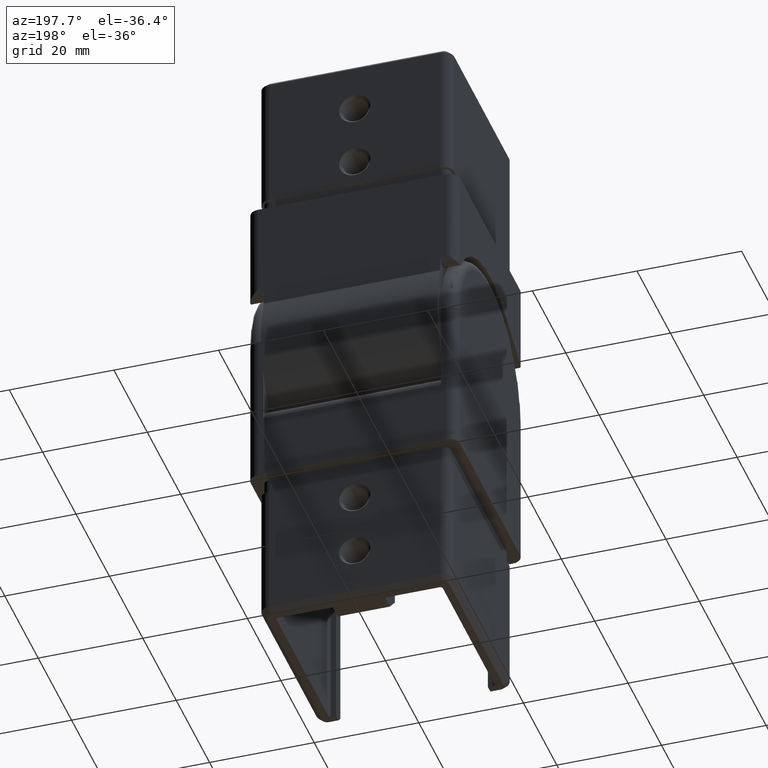
[diagram: clean part render]
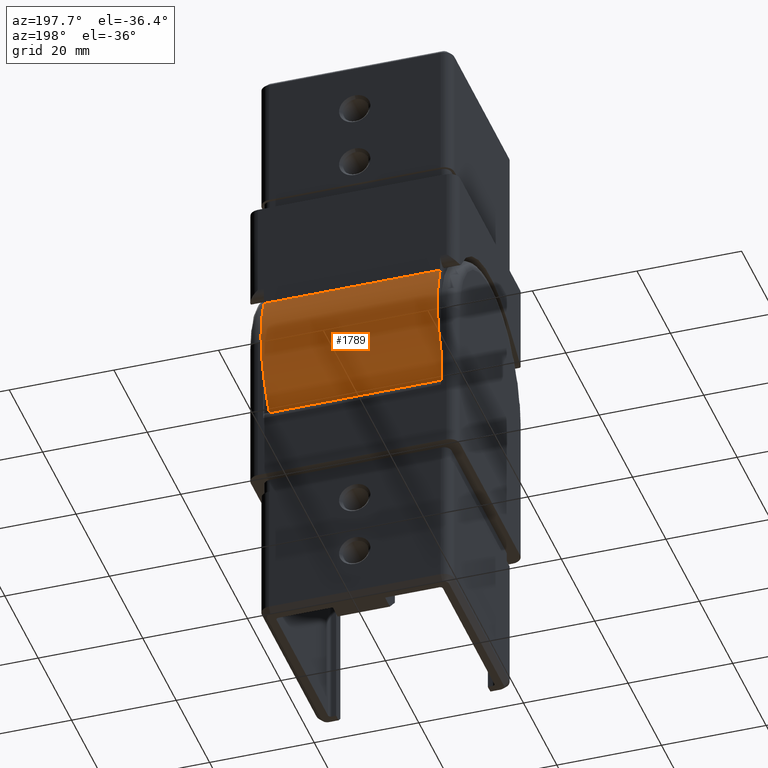
[diagram: same view with one face highlighted and labeled with its STEP entity id]
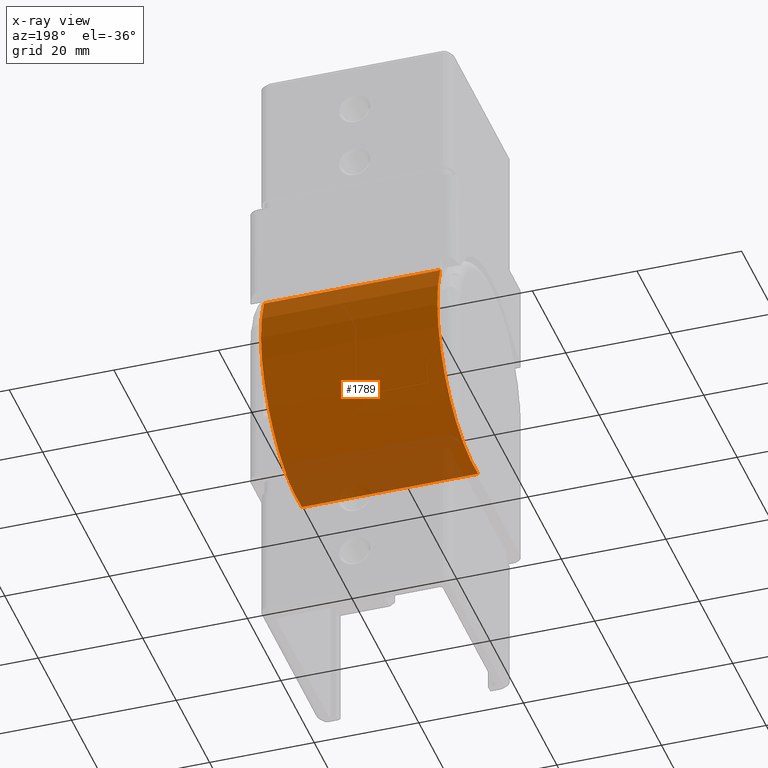
[diagram: x-ray of the same camera — body ghosted, the highlighted face saturated]
A machine part, auxiliary view. The second image highlights one B-rep face of the part: STEP entity #1789.
The next image is the same camera in x-ray: the body ghosted, the highlighted face saturated — about 20% of this face is hidden behind the body in this view.
In plain terms, the highlighted cylindrical surface (partial cylindrical patch) has radius 21.75 mm, axis along (-1, -0, -0).
Its self-contained STEP definition (entity closure, byte-faithful):
#364 = ORIENTED_EDGE ( 'NONE', *, *, #7246, .F. ) ;
#1382 = CARTESIAN_POINT ( 'NONE',  ( 20.00000000000000000, -2.740191000907865600, -51.57669699649469700 ) ) ;
#1789 = ADVANCED_FACE ( 'NONE', ( #2966 ), #14885, .T. ) ;
#2966 = FACE_OUTER_BOUND ( 'NONE', #6805, .T. ) ;
#4886 = CARTESIAN_POINT ( 'NONE',  ( 16.84999999999999100, 20.00000000000000400, -21.45233950136063700 ) ) ;
#5289 = VERTEX_POINT ( 'NONE', #4886 ) ;
#5575 = CARTESIAN_POINT ( 'NONE',  ( 16.84999999999999100, 0.0000000000000000000, -30.00000000000000000 ) ) ;
#5863 = DIRECTION ( 'NONE',  ( 0.0000000000000000000, 0.0000000000000000000, 1.000000000000000000 ) ) ;
#5985 = LINE ( 'NONE', #1382, #12105 ) ;
#6805 = EDGE_LOOP ( 'NONE', ( #11116, #14562, #364, #19634 ) ) ;
#6935 = AXIS2_PLACEMENT_3D ( 'NONE', #17586, #11776, #5863 ) ;
#7206 = DIRECTION ( 'NONE',  ( -1.000000000000000000, -0.0000000000000000000, -0.0000000000000000000 ) ) ;
#7246 = EDGE_CURVE ( 'NONE', #8224, #18544, #20764, .T. ) ;
#7491 = VECTOR ( 'NONE', #21823, 1000.000000000000000 ) ;
#7536 = DIRECTION ( 'NONE',  ( -1.000000000000000000, -0.0000000000000000000, -0.0000000000000000000 ) ) ;
#8224 = VERTEX_POINT ( 'NONE', #19527 ) ;
#8243 = DIRECTION ( 'NONE',  ( 0.0000000000000000000, 0.0000000000000000000, 1.000000000000000000 ) ) ;
#11116 = ORIENTED_EDGE ( 'NONE', *, *, #21081, .T. ) ;
#11776 = DIRECTION ( 'NONE',  ( -1.000000000000000000, 0.0000000000000000000, 0.0000000000000000000 ) ) ;
#12105 = VECTOR ( 'NONE', #7206, 1000.000000000000000 ) ;
#13316 = LINE ( 'NONE', #13993, #7491 ) ;
#13993 = CARTESIAN_POINT ( 'NONE',  ( 20.00000000000000000, 20.00000000000000700, -21.45233950136064000 ) ) ;
#14147 = DIRECTION ( 'NONE',  ( -1.000000000000000000, -0.0000000000000000000, -0.0000000000000000000 ) ) ;
#14562 = ORIENTED_EDGE ( 'NONE', *, *, #16564, .T. ) ;
#14885 = CYLINDRICAL_SURFACE ( 'NONE', #15896, 21.74999999999999600 ) ;
#15399 = DIRECTION ( 'NONE',  ( 0.0000000000000000000, 0.0000000000000000000, 1.000000000000000000 ) ) ;
#15896 = AXIS2_PLACEMENT_3D ( 'NONE', #19709, #14147, #8243 ) ;
#16250 = EDGE_CURVE ( 'NONE', #5289, #8224, #13316, .T. ) ;
#16373 = AXIS2_PLACEMENT_3D ( 'NONE', #5575, #7536, #15399 ) ;
#16564 = EDGE_CURVE ( 'NONE', #22977, #18544, #5985, .T. ) ;
#17586 = CARTESIAN_POINT ( 'NONE',  ( -16.84999999999999100, 0.0000000000000000000, -30.00000000000000000 ) ) ;
#17917 = CARTESIAN_POINT ( 'NONE',  ( -16.84999999999999100, -2.740191000907865600, -51.57669699649469700 ) ) ;
#18544 = VERTEX_POINT ( 'NONE', #17917 ) ;
#19527 = CARTESIAN_POINT ( 'NONE',  ( -16.84999999999999100, 20.00000000000000400, -21.45233950136063700 ) ) ;
#19634 = ORIENTED_EDGE ( 'NONE', *, *, #16250, .F. ) ;
#19709 = CARTESIAN_POINT ( 'NONE',  ( 20.00000000000000000, 0.0000000000000000000, -30.00000000000000000 ) ) ;
#20764 = CIRCLE ( 'NONE', #6935, 21.74999999999999600 ) ;
#21081 = EDGE_CURVE ( 'NONE', #5289, #22977, #22974, .T. ) ;
#21823 = DIRECTION ( 'NONE',  ( -1.000000000000000000, -0.0000000000000000000, -0.0000000000000000000 ) ) ;
#22036 = CARTESIAN_POINT ( 'NONE',  ( 16.84999999999999100, -2.740191000907865600, -51.57669699649469700 ) ) ;
#22974 = CIRCLE ( 'NONE', #16373, 21.74999999999999600 ) ;
#22977 = VERTEX_POINT ( 'NONE', #22036 ) ;